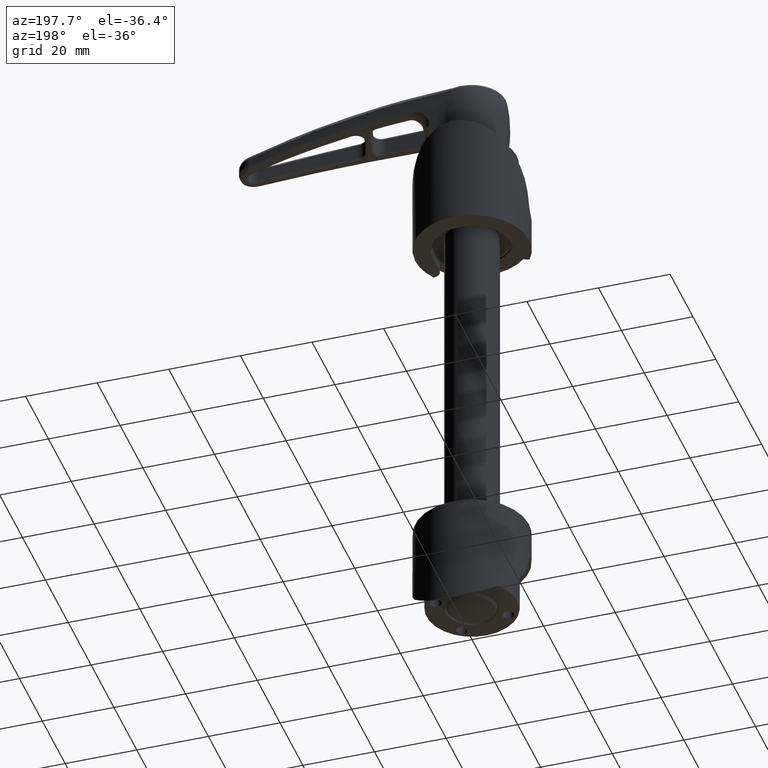
[diagram: clean part render]
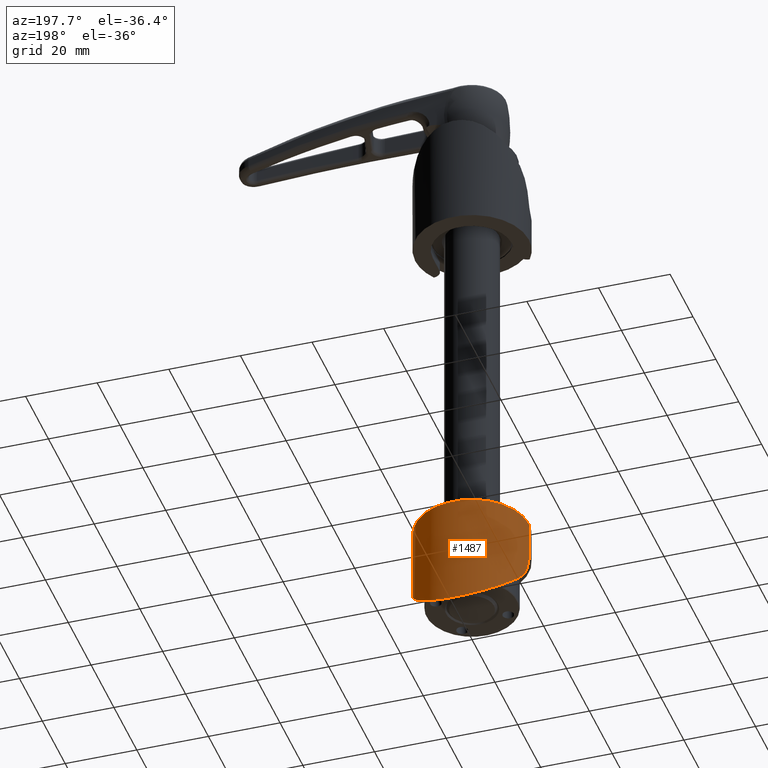
[diagram: same view with one face highlighted and labeled with its STEP entity id]
A machine part, auxiliary view. The second image highlights one B-rep face of the part: STEP entity #1487.
In plain terms, the highlighted cylindrical surface (partial cylindrical patch) has radius 15.875 mm, axis along (0, 0, 1).
Its self-contained STEP definition (entity closure, byte-faithful):
#33 = CARTESIAN_POINT ( 'NONE',  ( -15.57461517970149100, 3.085309145249545400, 18.62846473711362400 ) ) ;
#71 = EDGE_CURVE ( 'NONE', #2264, #7711, #5660, .T. ) ;
#161 = CARTESIAN_POINT ( 'NONE',  ( 15.87500000000000000, 1.040834085586084300E-014, 11.91732959089182700 ) ) ;
#296 = VERTEX_POINT ( 'NONE', #4794 ) ;
#361 = CARTESIAN_POINT ( 'NONE',  ( 15.05056713716680000, 5.049361726954693100, 20.92436172695468600 ) ) ;
#491 = AXIS2_PLACEMENT_3D ( 'NONE', #7004, #5671, #3079 ) ;
#1161 = EDGE_CURVE ( 'NONE', #3744, #296, #4900, .T. ) ;
#1314 = ORIENTED_EDGE ( 'NONE', *, *, #7993, .T. ) ;
#1440 = CARTESIAN_POINT ( 'NONE',  ( 15.40420856167662000, 3.874440225914185500, 19.66717157702864300 ) ) ;
#1487 = ADVANCED_FACE ( 'NONE', ( #6321 ), #4366, .T. ) ;
#1651 = VECTOR ( 'NONE', #8308, 1000.000000000000000 ) ;
#1818 = CARTESIAN_POINT ( 'NONE',  ( 15.87500000000000000, 1.040834085586084300E-014, 11.91732959089182700 ) ) ;
#1948 = CARTESIAN_POINT ( 'NONE',  ( -15.40468110914854800, 3.872984249340171800, 19.66581121994091300 ) ) ;
#2069 = CARTESIAN_POINT ( 'NONE',  ( 15.70573993294718700, 2.352322085651224400, 17.56764260502561500 ) ) ;
#2163 = ORIENTED_EDGE ( 'NONE', *, *, #3105, .T. ) ;
#2164 = CARTESIAN_POINT ( 'NONE',  ( -15.81170983107917700, 1.480481289200300500, 16.01740119786149600 ) ) ;
#2189 = CARTESIAN_POINT ( 'NONE',  ( -15.73383799179294800, 2.123336750374852100, 17.16231584665955600 ) ) ;
#2207 = CARTESIAN_POINT ( 'NONE',  ( -15.87122950525349900, 0.4704756545912823800, 13.60903579015419300 ) ) ;
#2264 = VERTEX_POINT ( 'NONE', #3888 ) ;
#2560 = DIRECTION ( 'NONE',  ( 0.0000000000000000000, 0.0000000000000000000, 1.000000000000000000 ) ) ;
#2720 = CARTESIAN_POINT ( 'NONE',  ( 15.80481243126988600, 1.503100474271742400, 16.02888813496363300 ) ) ;
#2733 = EDGE_LOOP ( 'NONE', ( #1314, #7225, #3719, #7321, #7991, #2163 ) ) ;
#2805 = CARTESIAN_POINT ( 'NONE',  ( -15.70161936696094400, 2.352489916908748300, 17.53933865818619300 ) ) ;
#2855 = CARTESIAN_POINT ( 'NONE',  ( -15.87500000000000000, 1.040834085586084300E-014, 11.91732959089182700 ) ) ;
#3079 = DIRECTION ( 'NONE',  ( -1.000000000000000000, 0.0000000000000000000, 0.0000000000000000000 ) ) ;
#3105 = EDGE_CURVE ( 'NONE', #7711, #8205, #7499, .T. ) ;
#3139 = EDGE_CURVE ( 'NONE', #296, #8272, #8118, .T. ) ;
#3145 = CARTESIAN_POINT ( 'NONE',  ( -9.198825641094661200, 22.49157185538132000, 38.36657185538132400 ) ) ;
#3361 = CARTESIAN_POINT ( 'NONE',  ( 15.84725525982817000, 0.9517677919149393200, 14.83369910066325800 ) ) ;
#3497 = CARTESIAN_POINT ( 'NONE',  ( -15.83954177001213300, 1.107334577277012200, 15.23014821785590900 ) ) ;
#3719 = ORIENTED_EDGE ( 'NONE', *, *, #3139, .T. ) ;
#3744 = VERTEX_POINT ( 'NONE', #1818 ) ;
#3797 = DIRECTION ( 'NONE',  ( -0.0000000000000000000, -0.0000000000000000000, -1.000000000000000000 ) ) ;
#3888 = CARTESIAN_POINT ( 'NONE',  ( -15.87500000000000000, 1.040834085586084300E-014, 11.91732959089182700 ) ) ;
#3993 = CARTESIAN_POINT ( 'NONE',  ( 15.25475415248842400, 4.440744133520913000, 20.31574413352091200 ) ) ;
#4017 = CARTESIAN_POINT ( 'NONE',  ( 15.87500000000000400, 0.2067755971631139400, 12.77530168909926500 ) ) ;
#4366 = CYLINDRICAL_SURFACE ( 'NONE', #491, 15.87500000000000000 ) ;
#4448 = CARTESIAN_POINT ( 'NONE',  ( 15.05056713716680000, 5.049361726954693100, 20.92436172695468600 ) ) ;
#4543 = CARTESIAN_POINT ( 'NONE',  ( -15.05056713716680000, 5.049361726954693100, 20.92436172695468600 ) ) ;
#4794 = CARTESIAN_POINT ( 'NONE',  ( 15.87500000000000000, 1.944126793646423200E-015, 0.0000000000000000000 ) ) ;
#4900 = LINE ( 'NONE', #7608, #1651 ) ;
#4946 = CARTESIAN_POINT ( 'NONE',  ( -15.87500000000000000, 0.0000000000000000000, 0.0000000000000000000 ) ) ;
#5237 = B_SPLINE_CURVE_WITH_KNOTS ( 'NONE', 3,
 ( #7898, #3993, #1440, #5951, #2069, #6629, #2720, #7280, #3361, #7931, #4017, #161 ),
 .UNSPECIFIED., .F., .F.,
 ( 4, 2, 2, 2, 2, 4 ),
 ( 4.906538933386797400E-018, 0.002610420881968621400, 0.005220841763937238500, 0.006526052204921546800, 0.007831262645905851700, 0.01044168352787446300 ),
 .UNSPECIFIED. ) ;
#5300 = AXIS2_PLACEMENT_3D ( 'NONE', #6453, #2560, #7122 ) ;
#5603 = EDGE_CURVE ( 'NONE', #2264, #8272, #7546, .T. ) ;
#5660 = B_SPLINE_CURVE_WITH_KNOTS ( 'NONE', 3,
 ( #2855, #6100, #2207, #3497, #2164, #2189, #2805, #6078, #33, #1948, #6526, #4543 ),
 .UNSPECIFIED., .F., .F.,
 ( 4, 2, 2, 2, 2, 4 ),
 ( 0.0000000000000000000, 0.002612208544745391600, 0.005224417089490783100, 0.006530521361863482800, 0.007836625634236184200, 0.01044883417898157500 ),
 .UNSPECIFIED. ) ;
#5671 = DIRECTION ( 'NONE',  ( -0.0000000000000000000, -0.0000000000000000000, -1.000000000000000000 ) ) ;
#5951 = CARTESIAN_POINT ( 'NONE',  ( 15.62979803098149900, 2.830254756473354700, 18.29311747350685400 ) ) ;
#6078 = CARTESIAN_POINT ( 'NONE',  ( -15.62197783741466700, 2.833525719206576800, 18.27234947679202600 ) ) ;
#6100 = CARTESIAN_POINT ( 'NONE',  ( -15.87500000000000400, 0.2067464617051911200, 12.77518079760959500 ) ) ;
#6321 = FACE_OUTER_BOUND ( 'NONE', #2733, .T. ) ;
#6453 = CARTESIAN_POINT ( 'NONE',  ( 0.0000000000000000000, 0.0000000000000000000, 0.0000000000000000000 ) ) ;
#6526 = CARTESIAN_POINT ( 'NONE',  ( -15.25461777020564800, 4.441150646425752400, 20.31615064642574700 ) ) ;
#6629 = CARTESIAN_POINT ( 'NONE',  ( 15.78448924856692600, 1.706616366052692300, 16.42133521018839600 ) ) ;
#6811 = CARTESIAN_POINT ( 'NONE',  ( -15.05056713716680000, 5.049361726954693100, 20.92436172695468600 ) ) ;
#7004 = CARTESIAN_POINT ( 'NONE',  ( 0.0000000000000000000, 0.0000000000000000000, 31.75000000000000000 ) ) ;
#7122 = DIRECTION ( 'NONE',  ( 1.000000000000000000, 0.0000000000000000000, 0.0000000000000000000 ) ) ;
#7225 = ORIENTED_EDGE ( 'NONE', *, *, #1161, .T. ) ;
#7280 = CARTESIAN_POINT ( 'NONE',  ( 15.83614086142690000, 1.126077102344387800, 15.23572535132733900 ) ) ;
#7321 = ORIENTED_EDGE ( 'NONE', *, *, #5603, .F. ) ;
#7337 = VECTOR ( 'NONE', #3797, 1000.000000000000000 ) ;
#7499 =( BOUNDED_CURVE ( )  B_SPLINE_CURVE ( 3, ( #7715, #3145, #8356, #4448 ),
 .UNSPECIFIED., .F., .F. ) 
 B_SPLINE_CURVE_WITH_KNOTS ( ( 4, 4 ),
 ( 5.036082081710411300, 7.530288532648761200 ),
 .UNSPECIFIED. ) 
 CURVE ( )  GEOMETRIC_REPRESENTATION_ITEM ( )  RATIONAL_B_SPLINE_CURVE ( ( 1.000000000000000000, 0.5453800200295928500, 0.5453800200295928500, 1.000000000000000000 ) ) 
 REPRESENTATION_ITEM ( '' )  );
#7546 = LINE ( 'NONE', #8352, #7337 ) ;
#7608 = CARTESIAN_POINT ( 'NONE',  ( 15.87500000000000000, 1.944126793646423200E-015, 31.75000000000000000 ) ) ;
#7711 = VERTEX_POINT ( 'NONE', #6811 ) ;
#7715 = CARTESIAN_POINT ( 'NONE',  ( -15.05056713716680000, 5.049361726954693100, 20.92436172695468600 ) ) ;
#7898 = CARTESIAN_POINT ( 'NONE',  ( 15.05056713716680000, 5.049361726954693100, 20.92436172695468600 ) ) ;
#7931 = CARTESIAN_POINT ( 'NONE',  ( 15.87125208818160600, 0.4710912362845802700, 13.61150512419530400 ) ) ;
#7991 = ORIENTED_EDGE ( 'NONE', *, *, #71, .T. ) ;
#7993 = EDGE_CURVE ( 'NONE', #8205, #3744, #5237, .T. ) ;
#8118 = CIRCLE ( 'NONE', #5300, 15.87500000000000000 ) ;
#8205 = VERTEX_POINT ( 'NONE', #361 ) ;
#8272 = VERTEX_POINT ( 'NONE', #4946 ) ;
#8308 = DIRECTION ( 'NONE',  ( -0.0000000000000000000, -0.0000000000000000000, -1.000000000000000000 ) ) ;
#8352 = CARTESIAN_POINT ( 'NONE',  ( -15.87500000000000000, 0.0000000000000000000, 31.75000000000000000 ) ) ;
#8356 = CARTESIAN_POINT ( 'NONE',  ( 9.198825641094655800, 22.49157185538132000, 38.36657185538132400 ) ) ;